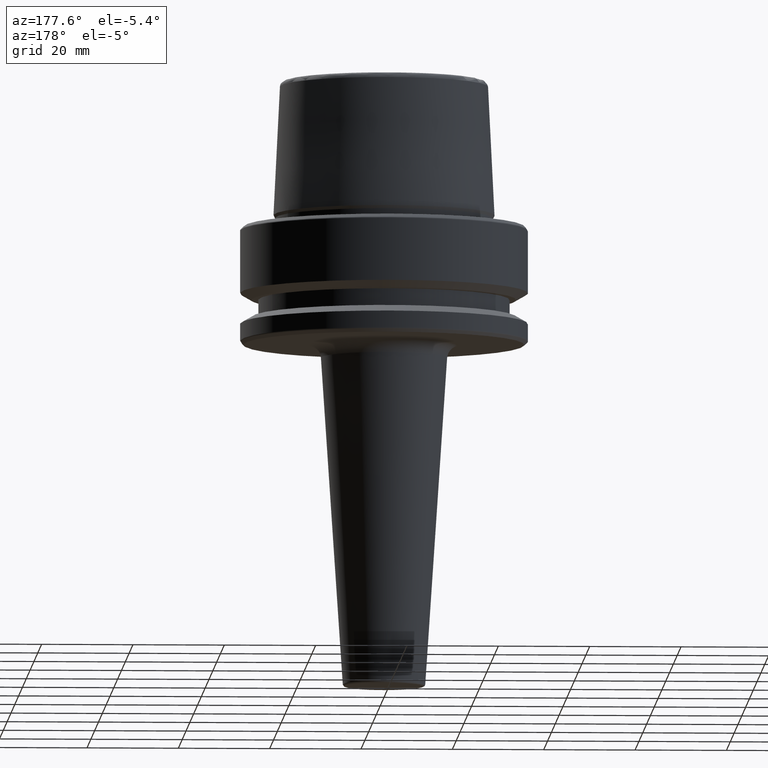
[diagram: clean part render]
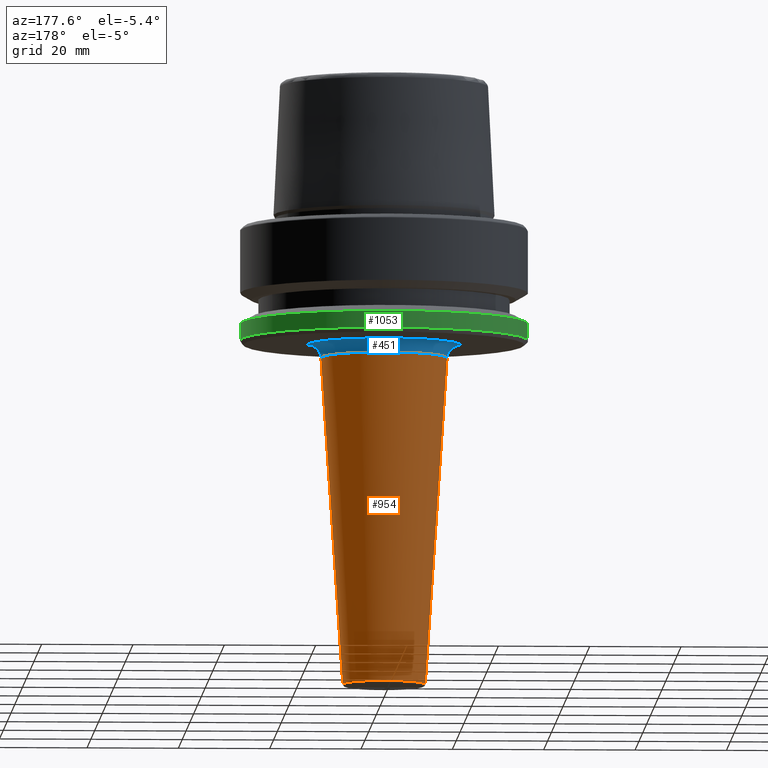
[diagram: same view with three faces highlighted in distinct colors, each labeled with its STEP entity id]
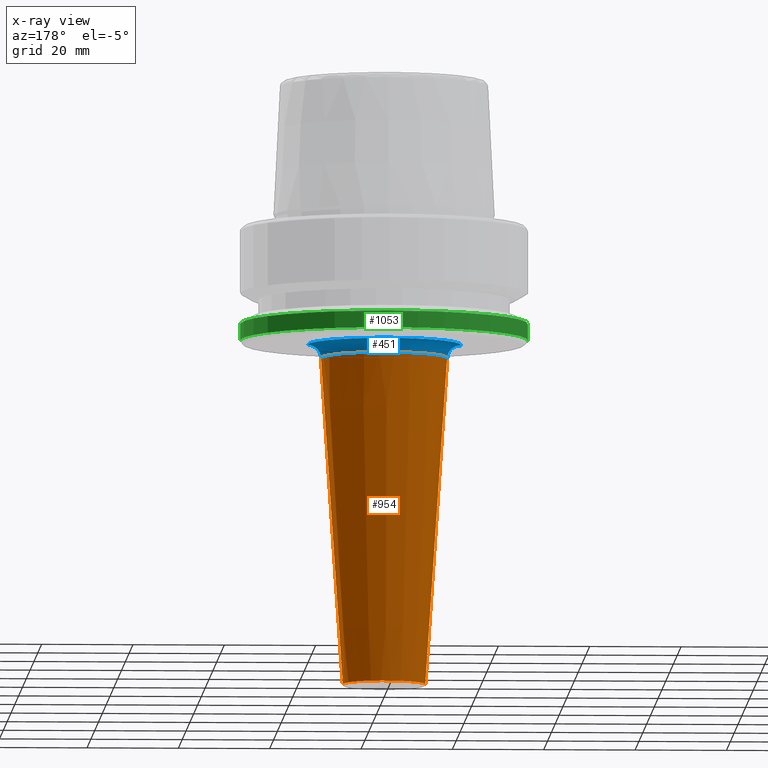
[diagram: x-ray of the same camera — body ghosted, the three highlighted faces saturated]
A machine part, auxiliary view with three faces highlighted in distinct colors.
The next image is the same camera in x-ray (body ghosted, the three faces saturated) — at least one of them is partly hidden behind the body in this view.
Their STEP definitions:

[orange] entity #954 — the highlighted conical surface has half-angle 3.814 deg.
#64 = CARTESIAN_POINT ( 'NONE',  ( -9.031116032982538400, 1.398817281470897600E-015, -100.5332595052619000 ) ) ;
#73 = VERTEX_POINT ( 'NONE', #64 ) ;
#81 = CARTESIAN_POINT ( 'NONE',  ( 0.0000000000000000000, 0.0000000000000000000, -26.00000000000000700 ) ) ;
#106 = ORIENTED_EDGE ( 'NONE', *, *, #302, .F. ) ;
#137 = CIRCLE ( 'NONE', #513, 9.031116032982538400 ) ;
#276 = VERTEX_POINT ( 'NONE', #313 ) ;
#302 = EDGE_CURVE ( 'NONE', #276, #1093, #481, .T. ) ;
#313 = CARTESIAN_POINT ( 'NONE',  ( 9.031116032982538400, 0.0000000000000000000, -100.5332595052619000 ) ) ;
#333 = LINE ( 'NONE', #1161, #1090 ) ;
#366 = VERTEX_POINT ( 'NONE', #381 ) ;
#378 = AXIS2_PLACEMENT_3D ( 'NONE', #508, #1187, #599 ) ;
#381 = CARTESIAN_POINT ( 'NONE',  ( -13.81330380210474800, 1.691641828689754200E-015, -28.80044296842868700 ) ) ;
#481 = LINE ( 'NONE', #946, #1229 ) ;
#508 = CARTESIAN_POINT ( 'NONE',  ( 0.0000000000000000000, 0.0000000000000000000, -28.80044296842868700 ) ) ;
#513 = AXIS2_PLACEMENT_3D ( 'NONE', #564, #1255, #656 ) ;
#524 = ORIENTED_EDGE ( 'NONE', *, *, #874, .T. ) ;
#564 = CARTESIAN_POINT ( 'NONE',  ( 0.0000000000000000000, 0.0000000000000000000, -100.5332595052619000 ) ) ;
#573 = DIRECTION ( 'NONE',  ( -0.06651901052377383300, 8.146229332038872300E-018, 0.9977851578566089300 ) ) ;
#574 = AXIS2_PLACEMENT_3D ( 'NONE', #81, #852, #1061 ) ;
#599 = DIRECTION ( 'NONE',  ( 1.000000000000000000, 0.0000000000000000000, 0.0000000000000000000 ) ) ;
#626 = EDGE_LOOP ( 'NONE', ( #1014, #786, #524, #106 ) ) ;
#656 = DIRECTION ( 'NONE',  ( 1.000000000000000000, 0.0000000000000000000, 0.0000000000000000000 ) ) ;
#736 = CARTESIAN_POINT ( 'NONE',  ( 13.81330380210474800, 0.0000000000000000000, -28.80044296842868700 ) ) ;
#786 = ORIENTED_EDGE ( 'NONE', *, *, #995, .T. ) ;
#852 = DIRECTION ( 'NONE',  ( 0.0000000000000000000, 0.0000000000000000000, 1.000000000000000000 ) ) ;
#874 = EDGE_CURVE ( 'NONE', #366, #1093, #1060, .T. ) ;
#942 = EDGE_CURVE ( 'NONE', #276, #73, #137, .T. ) ;
#946 = CARTESIAN_POINT ( 'NONE',  ( 13.99999999999999300, 0.0000000000000000000, -26.00000000000000700 ) ) ;
#954 = ADVANCED_FACE ( 'NONE', ( #1144 ), #1117, .T. ) ;
#995 = EDGE_CURVE ( 'NONE', #73, #366, #333, .T. ) ;
#1014 = ORIENTED_EDGE ( 'NONE', *, *, #942, .T. ) ;
#1060 = CIRCLE ( 'NONE', #378, 13.81330380210474700 ) ;
#1061 = DIRECTION ( 'NONE',  ( 1.000000000000000000, 0.0000000000000000000, 0.0000000000000000000 ) ) ;
#1090 = VECTOR ( 'NONE', #573, 1000.000000000000000 ) ;
#1093 = VERTEX_POINT ( 'NONE', #736 ) ;
#1117 = CONICAL_SURFACE ( 'NONE', #574, 13.99999999999999300, 0.06656816377582371000 ) ;
#1138 = DIRECTION ( 'NONE',  ( 0.06651901052377383300, 0.0000000000000000000, 0.9977851578566089300 ) ) ;
#1144 = FACE_OUTER_BOUND ( 'NONE', #626, .T. ) ;
#1161 = CARTESIAN_POINT ( 'NONE',  ( -13.99999999999999300, 1.714505518806293700E-015, -26.00000000000000700 ) ) ;
#1187 = DIRECTION ( 'NONE',  ( -0.0000000000000000000, -0.0000000000000000000, -1.000000000000000000 ) ) ;
#1229 = VECTOR ( 'NONE', #1138, 1000.000000000000000 ) ;
#1255 = DIRECTION ( 'NONE',  ( 0.0000000000000000000, 0.0000000000000000000, 1.000000000000000000 ) ) ;

[blue] entity #451 — the highlighted toroidal blend (fillet) surface has major radius 16.8067 mm and minor (blend) radius 3 mm.
#14 = DIRECTION ( 'NONE',  ( 1.224646799147353200E-016, 1.000000000000000000, 0.0000000000000000000 ) ) ;
#41 = CARTESIAN_POINT ( 'NONE',  ( 16.80665927567457300, 0.0000000000000000000, -29.00000000000000700 ) ) ;
#49 = EDGE_CURVE ( 'NONE', #79, #366, #812, .T. ) ;
#69 = FACE_OUTER_BOUND ( 'NONE', #920, .T. ) ;
#79 = VERTEX_POINT ( 'NONE', #742 ) ;
#191 = DIRECTION ( 'NONE',  ( 0.0000000000000000000, 0.0000000000000000000, -1.000000000000000000 ) ) ;
#233 = CARTESIAN_POINT ( 'NONE',  ( 0.0000000000000000000, 0.0000000000000000000, -29.00000000000000700 ) ) ;
#298 = CARTESIAN_POINT ( 'NONE',  ( 0.0000000000000000000, 0.0000000000000000000, -26.00000000000001100 ) ) ;
#327 = DIRECTION ( 'NONE',  ( 1.000000000000000000, 0.0000000000000000000, 0.0000000000000000000 ) ) ;
#329 = ORIENTED_EDGE ( 'NONE', *, *, #49, .F. ) ;
#334 = AXIS2_PLACEMENT_3D ( 'NONE', #298, #989, #390 ) ;
#366 = VERTEX_POINT ( 'NONE', #381 ) ;
#374 = VERTEX_POINT ( 'NONE', #578 ) ;
#378 = AXIS2_PLACEMENT_3D ( 'NONE', #508, #1187, #599 ) ;
#381 = CARTESIAN_POINT ( 'NONE',  ( -13.81330380210474800, 1.691641828689754200E-015, -28.80044296842868700 ) ) ;
#390 = DIRECTION ( 'NONE',  ( 1.000000000000000000, 0.0000000000000000000, 0.0000000000000000000 ) ) ;
#426 = AXIS2_PLACEMENT_3D ( 'NONE', #41, #714, #191 ) ;
#451 = ADVANCED_FACE ( 'NONE', ( #69 ), #585, .F. ) ;
#508 = CARTESIAN_POINT ( 'NONE',  ( 0.0000000000000000000, 0.0000000000000000000, -28.80044296842868700 ) ) ;
#543 = EDGE_CURVE ( 'NONE', #374, #1093, #738, .T. ) ;
#578 = CARTESIAN_POINT ( 'NONE',  ( 16.80665927567457300, 0.0000000000000000000, -26.00000000000001100 ) ) ;
#584 = CARTESIAN_POINT ( 'NONE',  ( -16.80665927567457300, 2.058222148631503600E-015, -29.00000000000000700 ) ) ;
#585 = TOROIDAL_SURFACE ( 'NONE', #698, 16.80665927567457300, 3.000000000000000000 ) ;
#599 = DIRECTION ( 'NONE',  ( 1.000000000000000000, 0.0000000000000000000, 0.0000000000000000000 ) ) ;
#610 = CIRCLE ( 'NONE', #334, 16.80665927567457300 ) ;
#669 = EDGE_CURVE ( 'NONE', #374, #79, #610, .T. ) ;
#682 = DIRECTION ( 'NONE',  ( -1.000000000000000000, 1.224646799147353500E-016, 0.0000000000000000000 ) ) ;
#698 = AXIS2_PLACEMENT_3D ( 'NONE', #233, #722, #327 ) ;
#714 = DIRECTION ( 'NONE',  ( 0.0000000000000000000, -1.000000000000000000, 0.0000000000000000000 ) ) ;
#722 = DIRECTION ( 'NONE',  ( -0.0000000000000000000, -0.0000000000000000000, 1.000000000000000000 ) ) ;
#736 = CARTESIAN_POINT ( 'NONE',  ( 13.81330380210474800, 0.0000000000000000000, -28.80044296842868700 ) ) ;
#738 = CIRCLE ( 'NONE', #426, 2.999999999999999100 ) ;
#742 = CARTESIAN_POINT ( 'NONE',  ( -16.80665927567457300, 2.058222148631503600E-015, -26.00000000000001100 ) ) ;
#769 = ORIENTED_EDGE ( 'NONE', *, *, #669, .F. ) ;
#812 = CIRCLE ( 'NONE', #1195, 2.999999999999999100 ) ;
#874 = EDGE_CURVE ( 'NONE', #366, #1093, #1060, .T. ) ;
#920 = EDGE_LOOP ( 'NONE', ( #329, #769, #1058, #980 ) ) ;
#980 = ORIENTED_EDGE ( 'NONE', *, *, #874, .F. ) ;
#989 = DIRECTION ( 'NONE',  ( -0.0000000000000000000, -0.0000000000000000000, 1.000000000000000000 ) ) ;
#1058 = ORIENTED_EDGE ( 'NONE', *, *, #543, .T. ) ;
#1060 = CIRCLE ( 'NONE', #378, 13.81330380210474700 ) ;
#1093 = VERTEX_POINT ( 'NONE', #736 ) ;
#1187 = DIRECTION ( 'NONE',  ( -0.0000000000000000000, -0.0000000000000000000, -1.000000000000000000 ) ) ;
#1195 = AXIS2_PLACEMENT_3D ( 'NONE', #584, #14, #682 ) ;

[green] entity #1053 — the highlighted cylindrical surface (partial cylindrical patch) has radius 31.5 mm, axis along (-0, -0, 1).
#74 = CARTESIAN_POINT ( 'NONE',  ( 0.0000000000000000000, 0.0000000000000000000, -21.37749907475931700 ) ) ;
#91 = ORIENTED_EDGE ( 'NONE', *, *, #370, .F. ) ;
#97 = VERTEX_POINT ( 'NONE', #351 ) ;
#168 = DIRECTION ( 'NONE',  ( 1.000000000000000000, 0.0000000000000000000, 0.0000000000000000000 ) ) ;
#205 = CARTESIAN_POINT ( 'NONE',  ( -31.50000000000000000, 3.857637417314161900E-015, -25.03431457505077200 ) ) ;
#224 = DIRECTION ( 'NONE',  ( -0.0000000000000000000, -0.0000000000000000000, 1.000000000000000000 ) ) ;
#282 = EDGE_CURVE ( 'NONE', #410, #854, #737, .T. ) ;
#290 = AXIS2_PLACEMENT_3D ( 'NONE', #372, #962, #1059 ) ;
#330 = VECTOR ( 'NONE', #224, 1000.000000000000000 ) ;
#351 = CARTESIAN_POINT ( 'NONE',  ( 31.50000000000000000, 0.0000000000000000000, -21.37749907475931700 ) ) ;
#354 = CARTESIAN_POINT ( 'NONE',  ( 0.0000000000000000000, 0.0000000000000000000, -25.03431457505077200 ) ) ;
#370 = EDGE_CURVE ( 'NONE', #410, #97, #1135, .T. ) ;
#372 = CARTESIAN_POINT ( 'NONE',  ( 0.0000000000000000000, 0.0000000000000000000, 78.96908074195309300 ) ) ;
#384 = VECTOR ( 'NONE', #870, 1000.000000000000000 ) ;
#410 = VERTEX_POINT ( 'NONE', #675 ) ;
#437 = ORIENTED_EDGE ( 'NONE', *, *, #1033, .F. ) ;
#458 = DIRECTION ( 'NONE',  ( 1.000000000000000000, 0.0000000000000000000, 0.0000000000000000000 ) ) ;
#536 = FACE_OUTER_BOUND ( 'NONE', #1234, .T. ) ;
#590 = LINE ( 'NONE', #1199, #330 ) ;
#637 = AXIS2_PLACEMENT_3D ( 'NONE', #354, #1050, #458 ) ;
#675 = CARTESIAN_POINT ( 'NONE',  ( 31.50000000000000000, 0.0000000000000000000, -25.03431457505077200 ) ) ;
#737 = CIRCLE ( 'NONE', #637, 31.50000000000000000 ) ;
#756 = DIRECTION ( 'NONE',  ( -0.0000000000000000000, -0.0000000000000000000, 1.000000000000000000 ) ) ;
#830 = EDGE_CURVE ( 'NONE', #854, #1157, #590, .T. ) ;
#854 = VERTEX_POINT ( 'NONE', #205 ) ;
#870 = DIRECTION ( 'NONE',  ( -0.0000000000000000000, -0.0000000000000000000, 1.000000000000000000 ) ) ;
#892 = CARTESIAN_POINT ( 'NONE',  ( -31.50000000000000000, 3.857637417314162700E-015, -21.37749907475931700 ) ) ;
#949 = ORIENTED_EDGE ( 'NONE', *, *, #282, .T. ) ;
#962 = DIRECTION ( 'NONE',  ( -0.0000000000000000000, -0.0000000000000000000, 1.000000000000000000 ) ) ;
#977 = CARTESIAN_POINT ( 'NONE',  ( 31.50000000000000000, 0.0000000000000000000, 78.96908074195309300 ) ) ;
#1002 = CYLINDRICAL_SURFACE ( 'NONE', #290, 31.50000000000000000 ) ;
#1033 = EDGE_CURVE ( 'NONE', #97, #1157, #1064, .T. ) ;
#1039 = AXIS2_PLACEMENT_3D ( 'NONE', #74, #756, #168 ) ;
#1050 = DIRECTION ( 'NONE',  ( -0.0000000000000000000, -0.0000000000000000000, 1.000000000000000000 ) ) ;
#1053 = ADVANCED_FACE ( 'NONE', ( #536 ), #1002, .T. ) ;
#1059 = DIRECTION ( 'NONE',  ( 1.000000000000000000, 0.0000000000000000000, 0.0000000000000000000 ) ) ;
#1064 = CIRCLE ( 'NONE', #1039, 31.50000000000000000 ) ;
#1135 = LINE ( 'NONE', #977, #384 ) ;
#1157 = VERTEX_POINT ( 'NONE', #892 ) ;
#1199 = CARTESIAN_POINT ( 'NONE',  ( -31.50000000000000000, 3.857637417314162700E-015, 78.96908074195309300 ) ) ;
#1217 = ORIENTED_EDGE ( 'NONE', *, *, #830, .T. ) ;
#1234 = EDGE_LOOP ( 'NONE', ( #949, #1217, #437, #91 ) ) ;